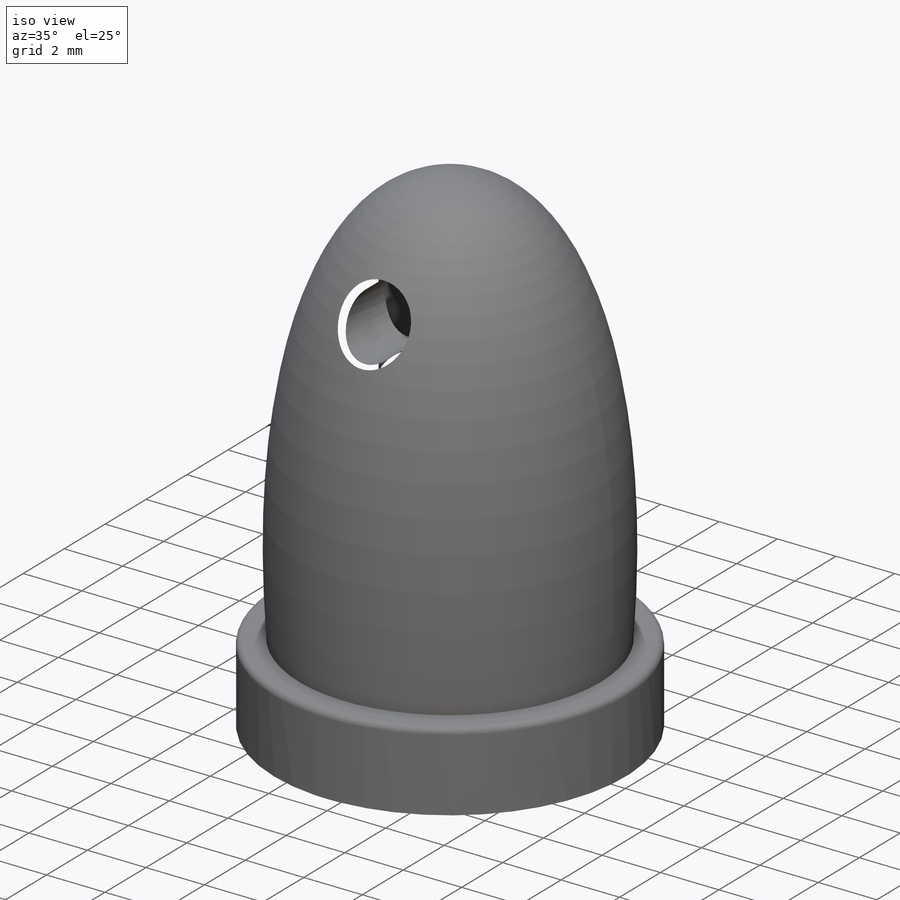
[diagram: iso view]
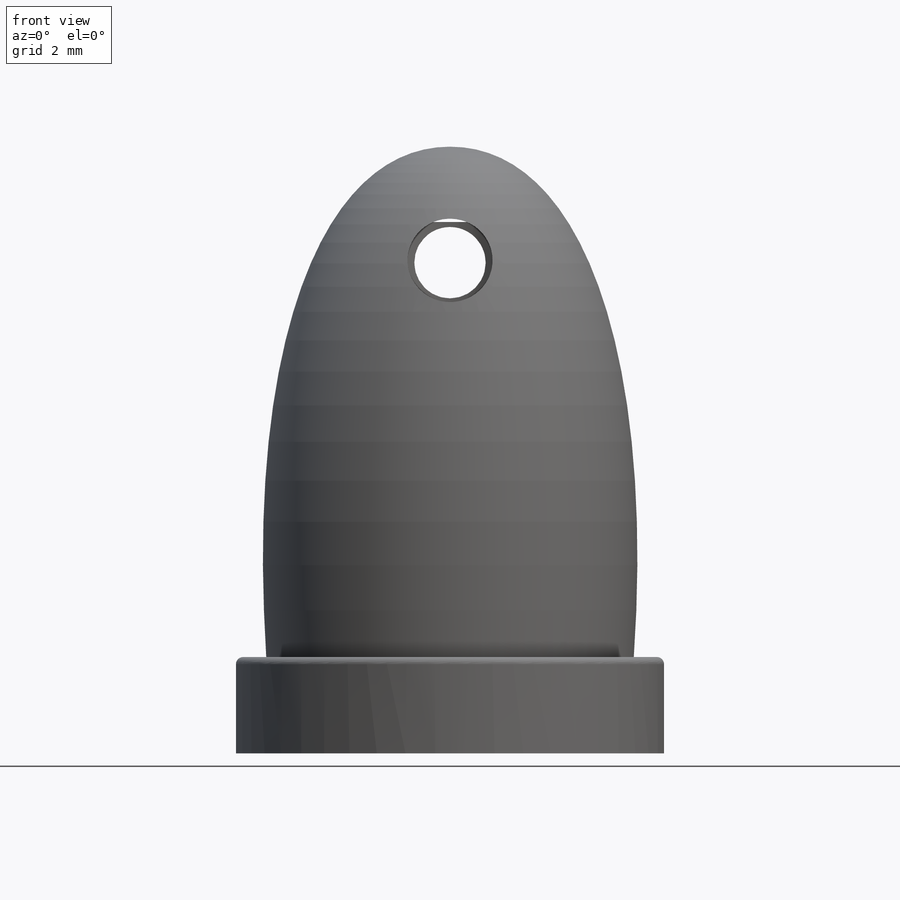
[diagram: front view]
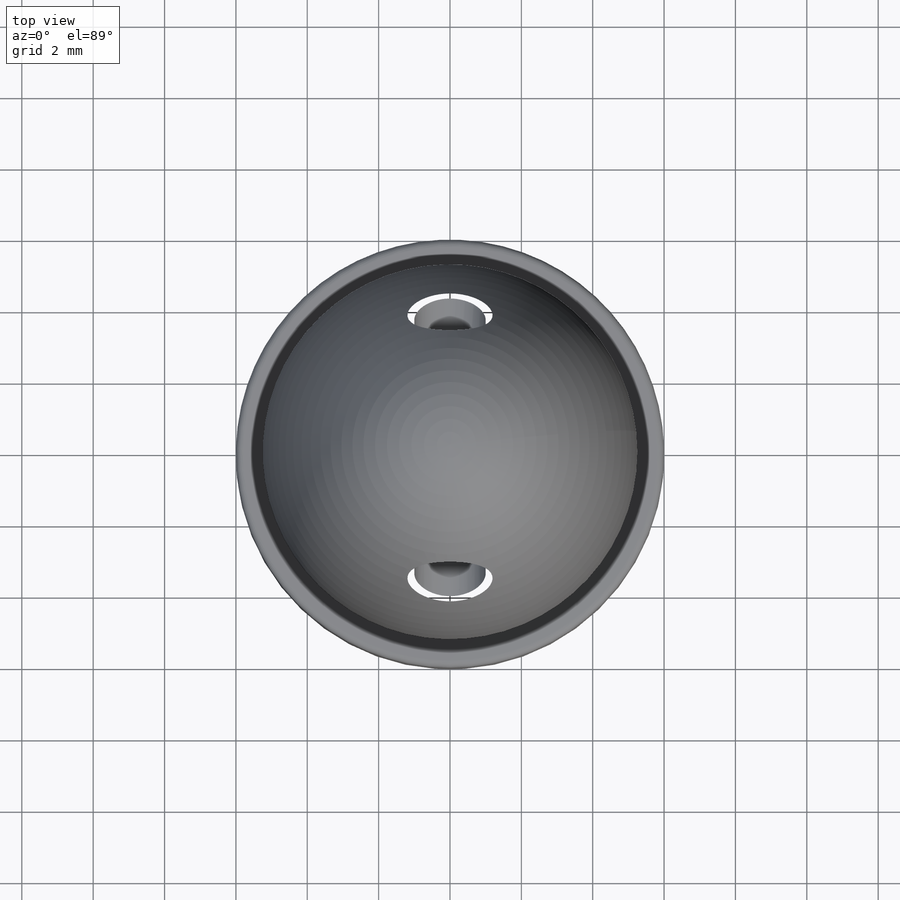
[diagram: top view]
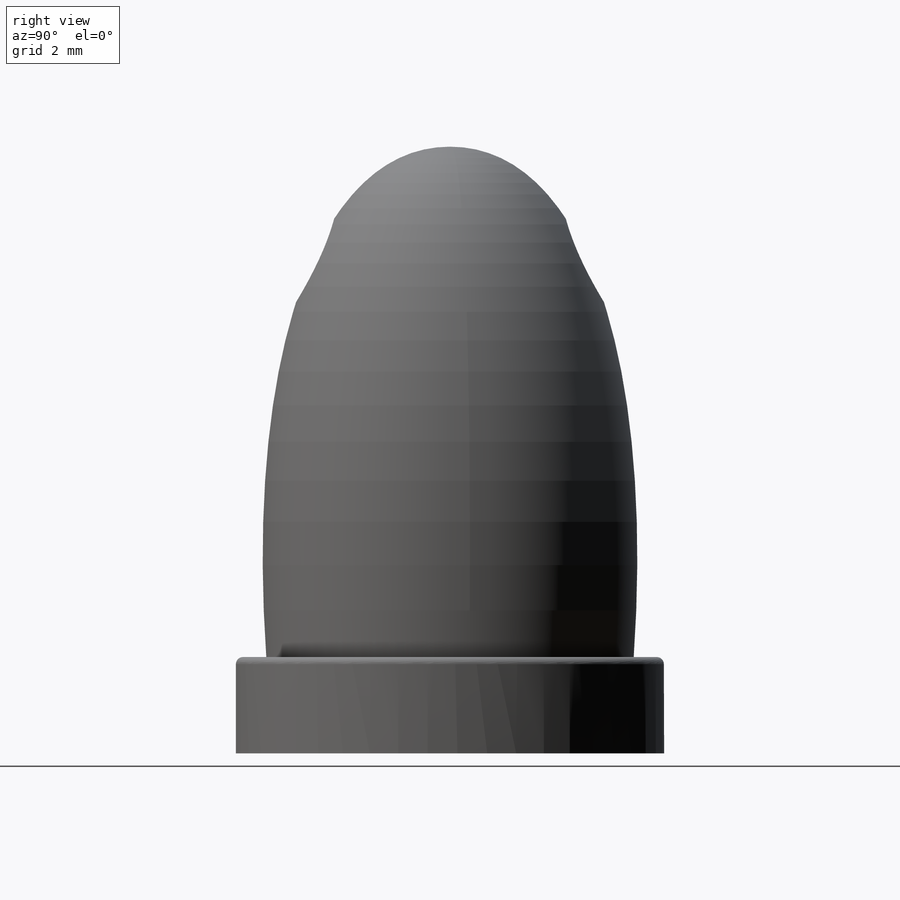
[diagram: right view]
SOLIDWORKS PART (.sldprt)
format: sldprt  version: not decoded by parser v0  size: 1,729,536 bytes
history: native  units: mm
features: sketch x10, fillet x3, sweep x3, cut_extrude x2, material x1, extrude x1, revolve x1, helix x1, chamfer x1, plane x1 (+13 scaffold rows collapsed)
feature tree (37):
  scaffold x13  (default folders/planes/origin — collapsed)
  material  "Alliage 1060"
  sketch  "Sketch1"  dims[D1=12.0mm]
  extrude  "Boss-Extrude1"  Depth=2.7mm
  sketch  "Sketch2"  dims[c1.D3=25.0mm c1.D4=12.0mm c1.D5=10.0mm c1.D1=17.0mm c1.D2=0.6mm c2.D2=5.25mm c2.D1=5.25mm c3.D2=5.15mm c3.D3=3.0mm c3.D4=17.0mm c3.D6=2.0mm c3.D7=1.0mm c4.D6=1.0mm]
  revolve  "Revolve1"  Angle=360deg
  fillet  "Fillet1"  Radius=0.2mm
  sketch  "Sketch3"  dims[c1.D1=~1.953343mm c1.D2=2.0mm c2.D1=13.75mm]
  cut_extrude  "Cut-Extrude1"  [1 undecoded]
  sketch  "Esquisse1"  dims[c1.D1=0.64mm c1.D2=0.64mm c1.D3=0.5mm c1.D4=2.5mm c2.D2=0.64mm c2.D4=2.0mm]
  sketch  "Esquisse4"  dims[D1=4.0mm]
  helix  "Hélice/Spirale1"  Pitch=10mm
  sketch  "Esquisse7"  dims[D1=4.0mm]
  cut_extrude  "Enlèv. mat.-Extru.1"  [1 undecoded]
  chamfer  "Chanfrein3"  Distance=0.5mm Angle=45deg
  sweep  "Enlèvement de matière-Balayage5"
  plane  "Plan1"  Offset=10mm
  sketch  "Esquisse5"  dims[D1=0.0mm]
  sketch  "Esquisse6"  dims[D1=4.0mm Hélice/Spirale3=0.0 D3=1.5mm D4=0.55mm D5=~2727.272727mm D6=30.0deg D7=155.45deg]
  sweep  "Enlèvement de matière-Balayage8"
  sketch  "Esquisse9"  dims[c1.D1=0.06mm c1.D2=0.5mm c1.D3=0.64mm c1.D4=2.5mm c2.D3=0.64mm c2.D4=2.0mm]
  sketch  "Esquisse10"  dims[D1=4.0mm Hélice/Spirale4=0.0 D3=1.0mm D4=0.55mm D5=~1818.181818mm D7=90.0deg]
  fillet  "Congé1"  Radius=0.25mm
  sweep  "Enlèvement de matière-Balayage9"
  fillet  "Congé2"  Radius=0.15mm
decode coverage: 17 of 22 modeling features carry decoded parameters
note: ~ marks probable driven/reference dimensions
note: 2 parameter values undecoded
note: suppression state not decoded; provenance and decode notes live in map.json
